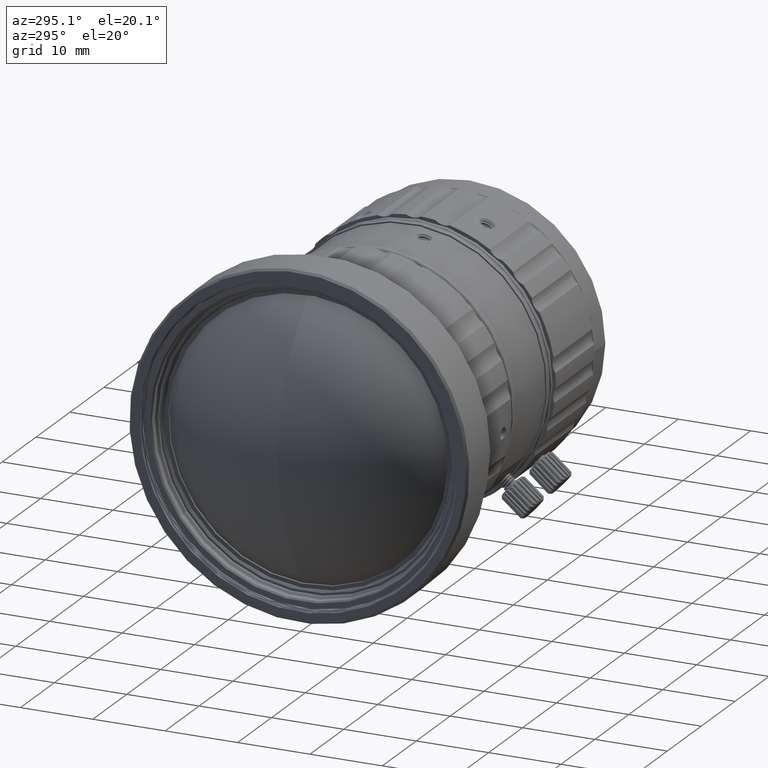
[diagram: clean part render]
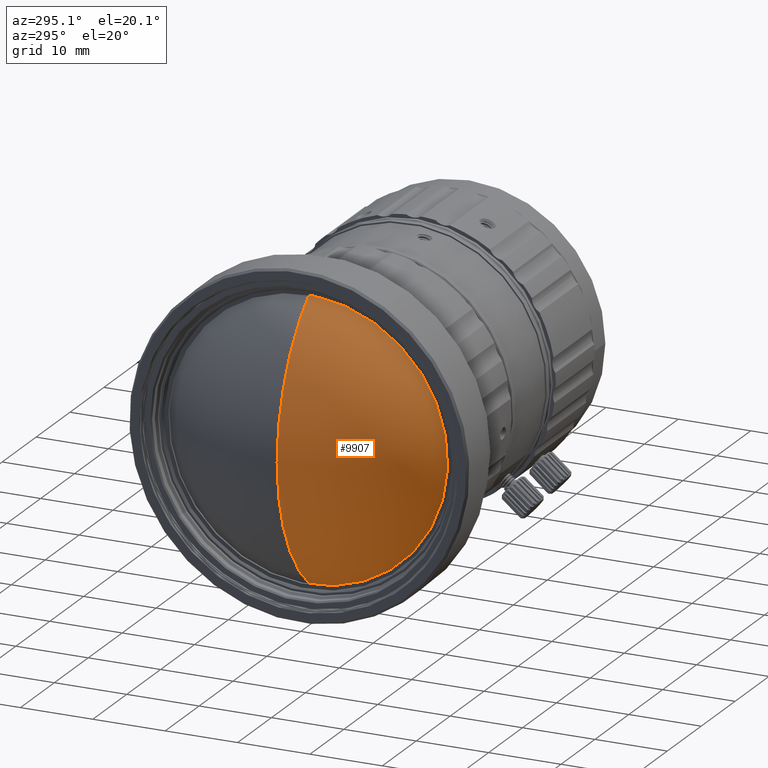
[diagram: same view with one face highlighted and labeled with its STEP entity id]
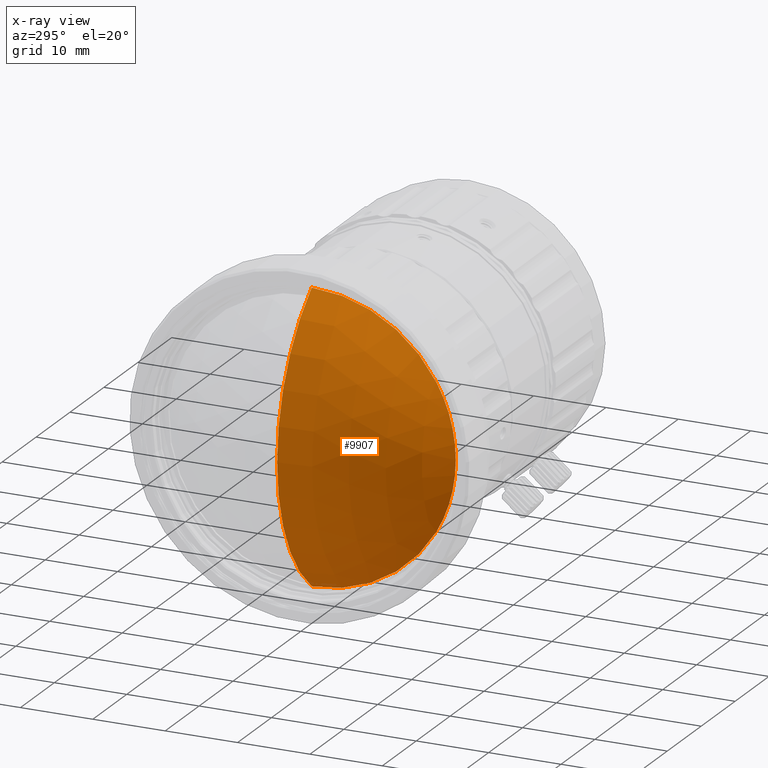
[diagram: x-ray of the same camera — body ghosted, the highlighted face saturated]
A machine part, auxiliary view. The second image highlights one B-rep face of the part: STEP entity #9907.
The next image is the same camera in x-ray: the body ghosted, the highlighted face saturated — about 0% of this face is hidden behind the body in this view.
In plain terms, the highlighted spherical surface has radius 24.5 mm.
Its self-contained STEP definition (entity closure, byte-faithful):
#1487 = EDGE_CURVE ( 'NONE', #16627, #21203, #34507, .T. ) ;
#4906 = CIRCLE ( 'NONE', #26309, 19.89999999996999946 ) ;
#9907 = ADVANCED_FACE ( 'NONE', ( #44641 ), #36033, .T. ) ;
#11539 = ORIENTED_EDGE ( 'NONE', *, *, #48300, .T. ) ;
#16627 = VERTEX_POINT ( 'NONE', #26933 ) ;
#19764 = CARTESIAN_POINT ( 'NONE',  ( -46.77947799984529809, 0.000000000000000000, -19.89999999997010249 ) ) ;
#21203 = VERTEX_POINT ( 'NONE', #19764 ) ;
#26179 = DIRECTION ( 'NONE',  ( 0.000000000000000000, 0.000000000000000000, -1.000000000000000000 ) ) ;
#26309 = AXIS2_PLACEMENT_3D ( 'NONE', #30111, #60356, #44741 ) ;
#26933 = CARTESIAN_POINT ( 'NONE',  ( -46.77947799984529809, 0.000000000000000000, 19.89999999996989999 ) ) ;
#28937 = EDGE_LOOP ( 'NONE', ( #11539, #49429 ) ) ;
#30111 = CARTESIAN_POINT ( 'NONE',  ( -46.77947799984529809, 0.000000000000000000, -1.230564851562999805E-13 ) ) ;
#32593 = DIRECTION ( 'NONE',  ( 0.000000000000000000, -1.000000000000000000, 0.000000000000000000 ) ) ;
#34507 = CIRCLE ( 'NONE', #48792, 24.49999999999998934 ) ;
#36033 = SPHERICAL_SURFACE ( 'NONE', #51213, 24.50000000000000000 ) ;
#40477 = CARTESIAN_POINT ( 'NONE',  ( -32.48822193184000895, 0.000000000000000000, -1.230564851562999805E-13 ) ) ;
#43370 = DIRECTION ( 'NONE',  ( -0.5833165742043241453, 0.000000000000000000, 0.8122448979578333894 ) ) ;
#44641 = FACE_OUTER_BOUND ( 'NONE', #28937, .T. ) ;
#44741 = DIRECTION ( 'NONE',  ( 0.000000000000000000, 0.000000000000000000, -1.000000000000000000 ) ) ;
#48300 = EDGE_CURVE ( 'NONE', #21203, #16627, #4906, .T. ) ;
#48792 = AXIS2_PLACEMENT_3D ( 'NONE', #61882, #32593, #43370 ) ;
#49429 = ORIENTED_EDGE ( 'NONE', *, *, #1487, .T. ) ;
#51213 = AXIS2_PLACEMENT_3D ( 'NONE', #40477, #55467, #26179 ) ;
#55467 = DIRECTION ( 'NONE',  ( 0.000000000000000000, 1.000000000000000000, 0.000000000000000000 ) ) ;
#60356 = DIRECTION ( 'NONE',  ( -1.000000000000000000, 0.000000000000000000, 0.000000000000000000 ) ) ;
#61882 = CARTESIAN_POINT ( 'NONE',  ( -32.48822193184000895, 0.000000000000000000, -1.230564851562999805E-13 ) ) ;